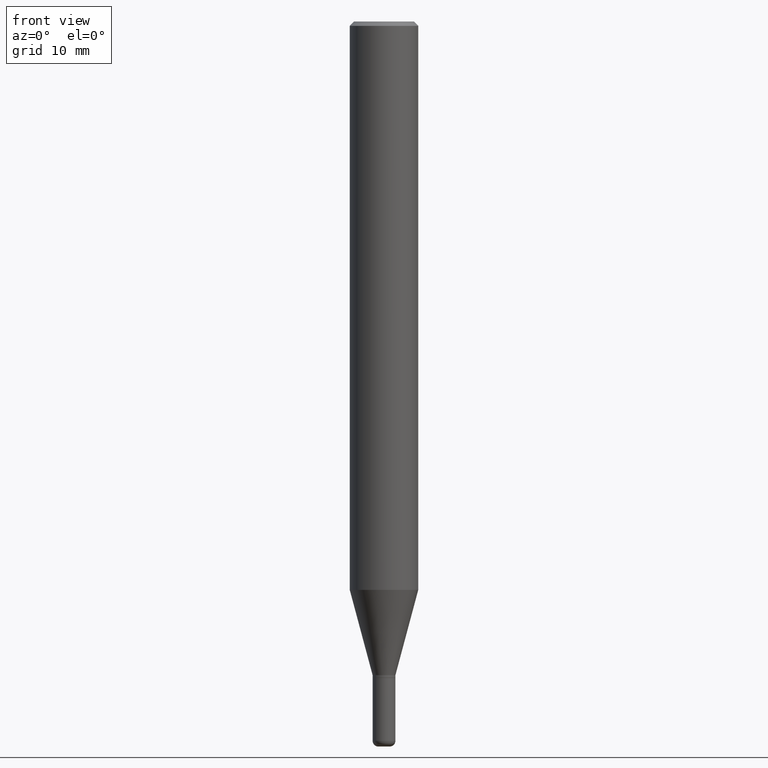
[diagram: clean part render]
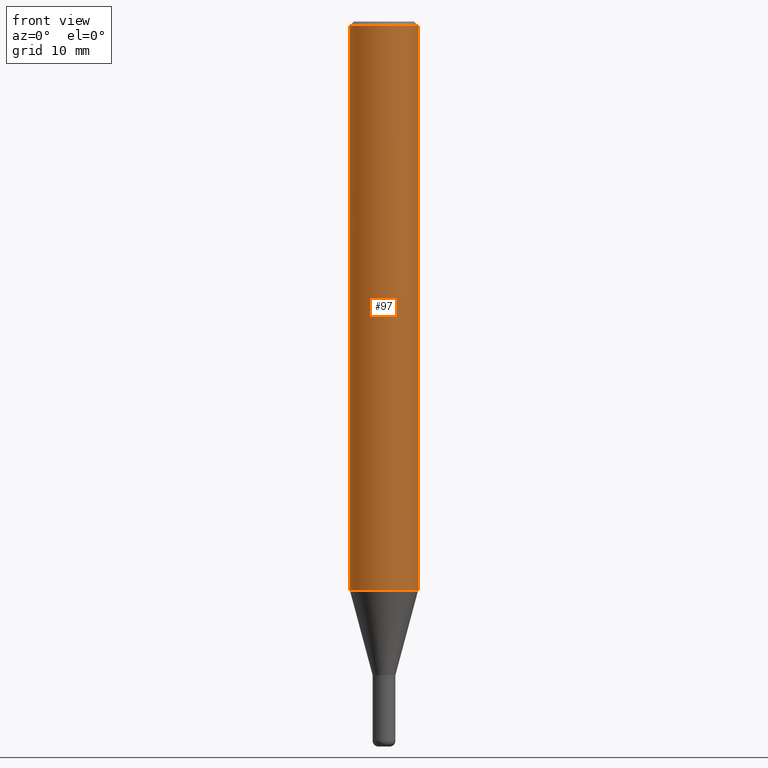
[diagram: same view with one face highlighted and labeled with its STEP entity id]
A machine part, front view. The second image highlights one B-rep face of the part: STEP entity #97.
In plain terms, the highlighted cylindrical surface (edge-blend (fillet) strip) has radius 2.9997 mm, axis along (-0, 0, 1).
Its self-contained STEP definition (entity closure, byte-faithful):
#28 = AXIS2_PLACEMENT_3D ( 'NONE', #197, #353, #70 ) ;
#42 = CARTESIAN_POINT ( 'NONE',  ( 0.1180999999999999966, -7.667645655887934594E-15, -1.959900998903951086 ) ) ;
#51 = EDGE_LOOP ( 'NONE', ( #128, #223, #406, #289 ) ) ;
#58 = EDGE_CURVE ( 'NONE', #325, #152, #304, .T. ) ;
#70 = DIRECTION ( 'NONE',  ( 1.000000000000000000, -6.982962677686265133E-15, 0.000000000000000000 ) ) ;
#97 = ADVANCED_FACE ( 'NONE', ( #439 ), #474, .T. ) ;
#128 = ORIENTED_EDGE ( 'NONE', *, *, #312, .F. ) ;
#130 = EDGE_CURVE ( 'NONE', #153, #152, #481, .T. ) ;
#131 = DIRECTION ( 'NONE',  ( -2.445468806185136877E-29, 3.491481338843145188E-15, 1.000000000000000000 ) ) ;
#148 = LINE ( 'NONE', #269, #427 ) ;
#152 = VERTEX_POINT ( 'NONE', #251 ) ;
#153 = VERTEX_POINT ( 'NONE', #42 ) ;
#180 = DIRECTION ( 'NONE',  ( -2.445468806185136877E-29, 3.491481338843145188E-15, 1.000000000000000000 ) ) ;
#183 = CIRCLE ( 'NONE', #28, 0.1180999999999999966 ) ;
#190 = DIRECTION ( 'NONE',  ( 1.000000000000000000, -6.982962677686266711E-15, 0.000000000000000000 ) ) ;
#197 = CARTESIAN_POINT ( 'NONE',  ( 4.792876756030702270E-29, -6.842957763653185543E-15, -1.959900998903951086 ) ) ;
#202 = CARTESIAN_POINT ( 'NONE',  ( 0.1180999999999999966, -8.246878922347480654E-16, 5.758764772215000440E-30 ) ) ;
#223 = ORIENTED_EDGE ( 'NONE', *, *, #340, .T. ) ;
#230 = CARTESIAN_POINT ( 'NONE',  ( 3.668203209277694140E-31, -5.237222008264703607E-17, -0.01499999999999995781 ) ) ;
#247 = DIRECTION ( 'NONE',  ( 1.000000000000000000, -6.982962677686266711E-15, 4.876176775795936353E-29 ) ) ;
#251 = CARTESIAN_POINT ( 'NONE',  ( 0.1180999999999999966, -8.770601123173951446E-16, -0.01499999999999995781 ) ) ;
#264 = AXIS2_PLACEMENT_3D ( 'NONE', #485, #329, #247 ) ;
#269 = CARTESIAN_POINT ( 'NONE',  ( -0.1180999999999999966, 8.391509709326782957E-16, -5.809262341591043784E-30 ) ) ;
#284 = VECTOR ( 'NONE', #131, 39.37007874015748143 ) ;
#289 = ORIENTED_EDGE ( 'NONE', *, *, #58, .F. ) ;
#304 = CIRCLE ( 'NONE', #313, 0.1180999999999999966 ) ;
#312 = EDGE_CURVE ( 'NONE', #351, #325, #148, .T. ) ;
#313 = AXIS2_PLACEMENT_3D ( 'NONE', #230, #383, #190 ) ;
#325 = VERTEX_POINT ( 'NONE', #411 ) ;
#329 = DIRECTION ( 'NONE',  ( -2.445468806185136597E-29, 3.491481338843145583E-15, 1.000000000000000000 ) ) ;
#340 = EDGE_CURVE ( 'NONE', #351, #153, #183, .T. ) ;
#351 = VERTEX_POINT ( 'NONE', #428 ) ;
#353 = DIRECTION ( 'NONE',  ( -2.445468806185136597E-29, 3.491481338843145583E-15, 1.000000000000000000 ) ) ;
#383 = DIRECTION ( 'NONE',  ( -2.445468806185136597E-29, 3.491481338843145583E-15, 1.000000000000000000 ) ) ;
#406 = ORIENTED_EDGE ( 'NONE', *, *, #130, .T. ) ;
#411 = CARTESIAN_POINT ( 'NONE',  ( -0.1180999999999999966, -2.608514020935237917E-15, -0.01499999999999995781 ) ) ;
#427 = VECTOR ( 'NONE', #180, 39.37007874015748143 ) ;
#428 = CARTESIAN_POINT ( 'NONE',  ( -0.1180999999999999966, -6.003806792720507346E-15, -1.959900998903951086 ) ) ;
#439 = FACE_OUTER_BOUND ( 'NONE', #51, .T. ) ;
#474 = CYLINDRICAL_SURFACE ( 'NONE', #264, 0.1180999999999999966 ) ;
#481 = LINE ( 'NONE', #202, #284 ) ;
#485 = CARTESIAN_POINT ( 'NONE',  ( 0.000000000000000000, 0.000000000000000000, 0.000000000000000000 ) ) ;